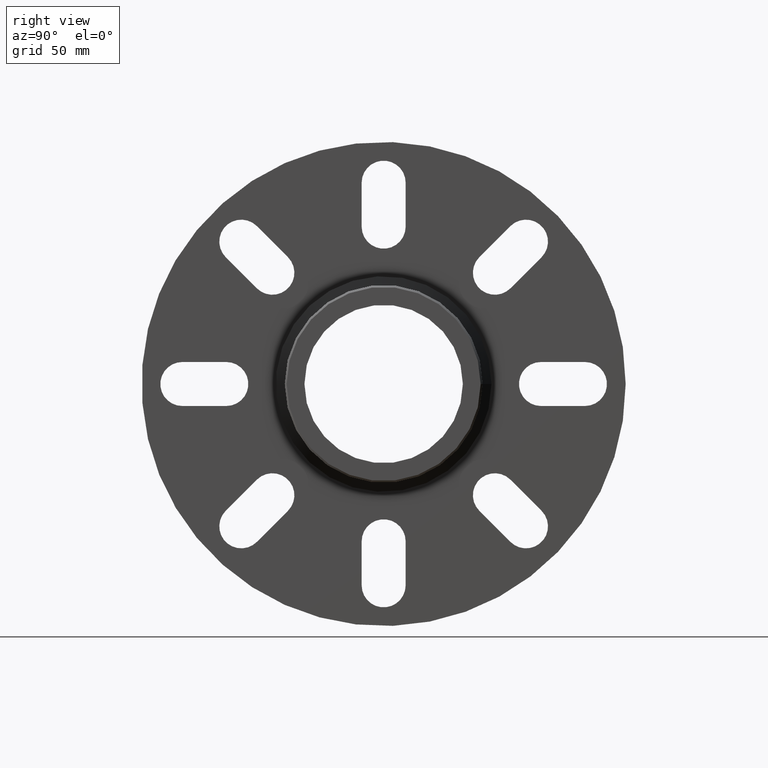
[diagram: clean part render]
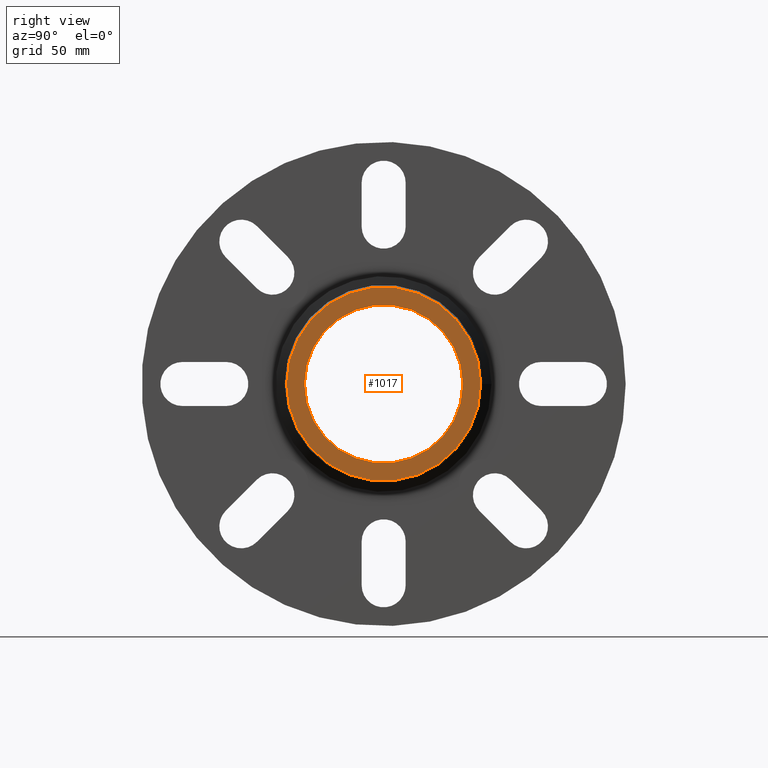
[diagram: same view with one face highlighted and labeled with its STEP entity id]
A machine part, right view. The second image highlights one B-rep face of the part: STEP entity #1017.
In plain terms, the highlighted planar face has unit normal (1, 0, 0).
Its self-contained STEP definition (entity closure, byte-faithful):
#143=PLANE('',#1090);
#211=FACE_BOUND('',#334,.T.);
#263=FACE_OUTER_BOUND('',#333,.T.);
#333=EDGE_LOOP('',(#753));
#334=EDGE_LOOP('',(#754));
#450=CIRCLE('',#1087,44.1);
#452=CIRCLE('',#1091,36.);
#518=VERTEX_POINT('',#1563);
#520=VERTEX_POINT('',#1569);
#618=EDGE_CURVE('',#518,#518,#450,.T.);
#620=EDGE_CURVE('',#520,#520,#452,.T.);
#753=ORIENTED_EDGE('',*,*,#618,.F.);
#754=ORIENTED_EDGE('',*,*,#620,.F.);
#1017=ADVANCED_FACE('',(#263,#211),#143,.T.);
#1087=AXIS2_PLACEMENT_3D('',#1564,#1227,#1228);
#1090=AXIS2_PLACEMENT_3D('',#1568,#1233,#1234);
#1091=AXIS2_PLACEMENT_3D('',#1570,#1235,#1236);
#1227=DIRECTION('center_axis',(-1.,-1.22464679914735E-16,0.));
#1228=DIRECTION('ref_axis',(1.22464679914735E-16,-1.,0.));
#1233=DIRECTION('center_axis',(1.,1.22464679914735E-16,0.));
#1234=DIRECTION('ref_axis',(0.,0.,-1.));
#1235=DIRECTION('center_axis',(1.,1.22464679914735E-16,0.));
#1236=DIRECTION('ref_axis',(0.,0.,-1.));
#1563=CARTESIAN_POINT('',(-2.99643768040714E-14,44.1,-5.40069238423983E-15));
#1564=CARTESIAN_POINT('Origin',(-2.45636844198316E-14,-3.74400781188879E-30,
0.));
#1568=CARTESIAN_POINT('Origin',(-2.89622454164037E-14,36.,0.));
#1569=CARTESIAN_POINT('',(-2.89622454164037E-14,36.,0.));
#1570=CARTESIAN_POINT('Origin',(-2.66453525910038E-14,-2.95822839457879E-30,
0.));